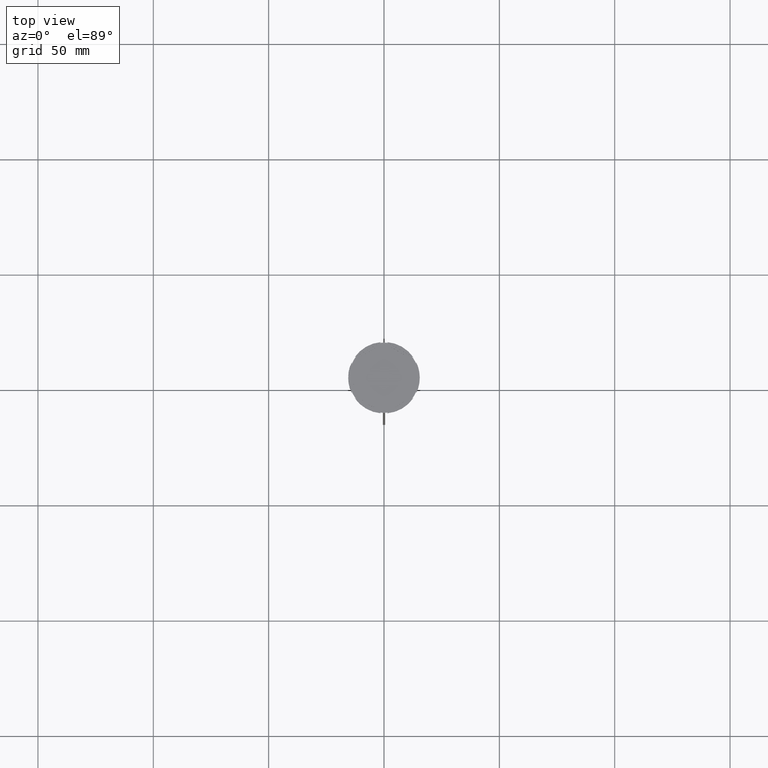
[diagram: clean part render]
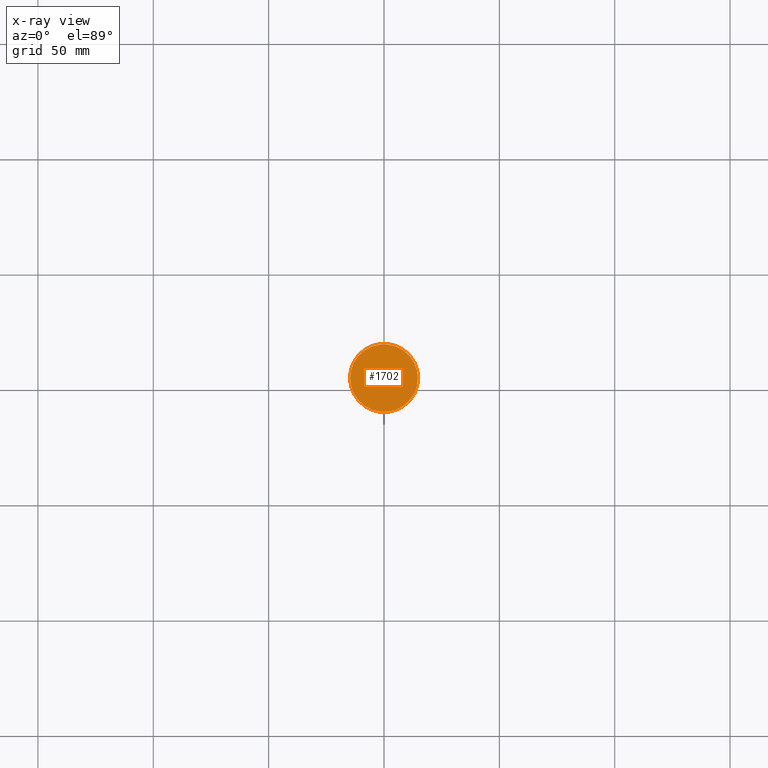
[diagram: x-ray — body ghosted, one internal face saturated and labeled with its STEP entity id]
A machine part, top view, then the same camera in x-ray: the body is ghosted and one INTERNAL B-rep face — a face not visible from any outside direction — is saturated and labeled: STEP entity #1702.
In plain terms, the highlighted planar face has unit normal (0, 0, -1).
Its self-contained STEP definition (entity closure, byte-faithful):
#172 = CIRCLE ( 'NONE', #1246, 14.70000000000000107 ) ;
#295 = VERTEX_POINT ( 'NONE', #1705 ) ;
#416 = DIRECTION ( 'NONE',  ( -0.000000000000000000, -0.000000000000000000, 1.000000000000000000 ) ) ;
#501 = EDGE_CURVE ( 'NONE', #295, #2329, #1434, .T. ) ;
#653 = DIRECTION ( 'NONE',  ( -1.000000000000000000, 0.000000000000000000, -0.000000000000000000 ) ) ;
#676 = CARTESIAN_POINT ( 'NONE',  ( 0.000000000000000000, 0.000000000000000000, -12.00000000000000000 ) ) ;
#803 = ORIENTED_EDGE ( 'NONE', *, *, #1019, .T. ) ;
#871 = DIRECTION ( 'NONE',  ( 0.000000000000000000, 0.000000000000000000, -1.000000000000000000 ) ) ;
#905 = PLANE ( 'NONE',  #2216 ) ;
#989 = CARTESIAN_POINT ( 'NONE',  ( 14.70000000000000107, 1.818600496733819553E-15, -12.00000000000000000 ) ) ;
#1019 = EDGE_CURVE ( 'NONE', #2329, #295, #172, .T. ) ;
#1052 = DIRECTION ( 'NONE',  ( -0.000000000000000000, -0.000000000000000000, 1.000000000000000000 ) ) ;
#1218 = ORIENTED_EDGE ( 'NONE', *, *, #501, .T. ) ;
#1246 = AXIS2_PLACEMENT_3D ( 'NONE', #676, #416, #1411 ) ;
#1411 = DIRECTION ( 'NONE',  ( -1.000000000000000000, 0.000000000000000000, 0.000000000000000000 ) ) ;
#1434 = CIRCLE ( 'NONE', #2638, 14.70000000000000107 ) ;
#1562 = CARTESIAN_POINT ( 'NONE',  ( 0.000000000000000000, 0.000000000000000000, -12.00000000000000000 ) ) ;
#1702 = ADVANCED_FACE ( 'NONE', ( #2583 ), #905, .F. ) ;
#1705 = CARTESIAN_POINT ( 'NONE',  ( -14.70000000000000107, 0.000000000000000000, -12.00000000000000000 ) ) ;
#1767 = EDGE_LOOP ( 'NONE', ( #1218, #803 ) ) ;
#1788 = CARTESIAN_POINT ( 'NONE',  ( 0.000000000000000000, 0.000000000000000000, -12.00000000000000000 ) ) ;
#1963 = DIRECTION ( 'NONE',  ( -1.000000000000000000, 0.000000000000000000, 0.000000000000000000 ) ) ;
#2216 = AXIS2_PLACEMENT_3D ( 'NONE', #1788, #871, #653 ) ;
#2329 = VERTEX_POINT ( 'NONE', #989 ) ;
#2583 = FACE_OUTER_BOUND ( 'NONE', #1767, .T. ) ;
#2638 = AXIS2_PLACEMENT_3D ( 'NONE', #1562, #1052, #1963 ) ;